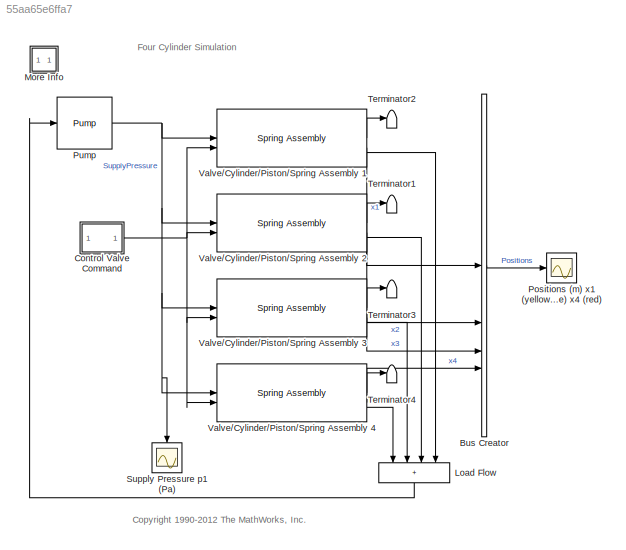
MODEL slx_55aa65e6ffa7
KIND model
CONFIG AbsTol = auto
CONFIG EnableMultiTasking = off
CONFIG FixedStep = 0.001
CONFIG MaxStep = auto
CONFIG MinStep = auto
CONFIG RelTol = 1e-6
CONFIG SampleTimeConstraint = Unconstrained
CONFIG SolverName = ode45
CONFIG StartTime = 0.0
CONFIG StopTime = 0.1
WORKSPACE source: MATLAB code (in-file)
WORKSPACE code: load sldemo_hydcyl_data;
BLOCK [BusCreator] Bus Creator
  DisplayOption = bar
  InheritFromInputs = on
  Inputs = 4
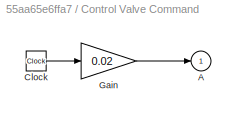
BLOCK [SubSystem] Control Valve Command
  ShowPortLabels = none
BLOCK [Outport] Control Valve Command/A
  InitialOutput = 0
  VectorParamsAs1DForOutWhenUnconnected = off
BLOCK [Clock] Control Valve Command/Clock
BLOCK [Gain] Control Valve Command/Gain
  Gain = 0.02
  OutDataTypeStr = Inherit: Same as input
  ParamDataTypeStr = Inherit: Same as input
  SaturateOnIntegerOverflow = on
BLOCK [Sum] Load Flow
  IconShape = rectangular
  InputSameDT = on
  Inputs = ++++
  NameLocation = left
  OutDataTypeStr = Inherit: Same as first input
  SaturateOnIntegerOverflow = on
BLOCK [SubSystem] More Info
  OpenFcn = showExample('simulink_general/sldemo_hydcyl4Example')
BLOCK [Scope] Positions (m) x1 (yellow) x2 (purple) x3 (blue) x4 (red)
  Floating = off
  NumInputPorts = 1
  ScopeSpecificationString = Simulink.scopes.TimeScopeBlockCfg('CurrentConfiguration', extmgr.ConfigurationSet(extmgr.Configuration('Core','General UI',true),extmgr.Configuration('Core','Source UI',true),extmgr.Configuration('Sources','WiredSimulink',true,'DataLoggingSaveFormat','Array','DataLoggingDecimation','1','DataLoggingDecimateData',true),extmgr.Configuration('Visuals','Time Domain',true,'TimeAxisLabels','All','Seriali...<+1730ch>
BLOCK [Reference] Pump  REF=hydlib/Pump  (lib defined in mdl_a1138ae370f5)
  SourceBlock = hydlib/Pump
  SourceProductName = Simulink
  SourceType = Pump
BLOCK [Scope] Supply Pressure p1 (Pa)
  Floating = off
  NameLocation = left
  NumInputPorts = 1
  ScopeSpecificationString = Simulink.scopes.TimeScopeBlockCfg('CurrentConfiguration', extmgr.ConfigurationSet(extmgr.Configuration('Core','General UI',true),extmgr.Configuration('Core','Source UI',true),extmgr.Configuration('Sources','WiredSimulink',true,'DataLoggingSaveFormat','Array','DataLoggingDecimation','1','DataLoggingDecimateData',true),extmgr.Configuration('Visuals','Time Domain',true,'TimeAxisLabels','All','Seriali...<+1742ch>
BLOCK [Terminator] Terminator1
BLOCK [Terminator] Terminator2
BLOCK [Terminator] Terminator3
BLOCK [Terminator] Terminator4
BLOCK [Reference] Valve//Cylinder//Piston//Spring Assembly 1  REF=hydlib/Valve//Cylinder//Piston//Spring Assembly  (lib defined in mdl_a1138ae370f5)
  SourceBlock = hydlib/Valve//Cylinder//Piston//Spring Assembly
  SourceProductName = Simulink
  SourceType = Valve/Cylinder/Piston/Spring Assembly
BLOCK [Reference] Valve//Cylinder//Piston//Spring Assembly 2  REF=hydlib/Valve//Cylinder//Piston//Spring Assembly  (lib defined in mdl_a1138ae370f5)
  SourceBlock = hydlib/Valve//Cylinder//Piston//Spring Assembly
  SourceProductName = Simulink
  SourceType = Valve/Cylinder/Piston/Spring Assembly
BLOCK [Reference] Valve//Cylinder//Piston//Spring Assembly 3  REF=hydlib/Valve//Cylinder//Piston//Spring Assembly  (lib defined in mdl_a1138ae370f5)
  SourceBlock = hydlib/Valve//Cylinder//Piston//Spring Assembly
  SourceProductName = Simulink
  SourceType = Valve/Cylinder/Piston/Spring Assembly
BLOCK [Reference] Valve//Cylinder//Piston//Spring Assembly 4  REF=hydlib/Valve//Cylinder//Piston//Spring Assembly  (lib defined in mdl_a1138ae370f5)
  SourceBlock = hydlib/Valve//Cylinder//Piston//Spring Assembly
  SourceProductName = Simulink
  SourceType = Valve/Cylinder/Piston/Spring Assembly
ANNOTATION (root): <copyright redacted>
ANNOTATION (root): Four Cylinder Simulation
LINE Bus Creator:1 -> Positions (m) x1 (yellow) x2 (purple) x3 (blue) x4 (red):1
LINE Control Valve Command/Clock:1 -> Control Valve Command/Gain:1
LINE Control Valve Command/Gain:1 -> Control Valve Command/A:1
NET Control Valve Command:1 -> Valve//Cylinder//Piston//Spring Assembly 1:2, Valve//Cylinder//Piston//Spring Assembly 2:2, Valve//Cylinder//Piston//Spring Assembly 3:2, Valve//Cylinder//Piston//Spring Assembly 4:2
LINE Load Flow:1 -> Pump:1
NET Pump:1 -> Supply Pressure p1 (Pa):1, Valve//Cylinder//Piston//Spring Assembly 1:1, Valve//Cylinder//Piston//Spring Assembly 2:1, Valve//Cylinder//Piston//Spring Assembly 3:1, Valve//Cylinder//Piston//Spring Assembly 4:1
LINE Valve//Cylinder//Piston//Spring Assembly 1:1 -> Terminator2:1
LINE Valve//Cylinder//Piston//Spring Assembly 1:2 -> Bus Creator:1
LINE Valve//Cylinder//Piston//Spring Assembly 1:3 -> Load Flow:4
LINE Valve//Cylinder//Piston//Spring Assembly 2:1 -> Terminator1:1
LINE Valve//Cylinder//Piston//Spring Assembly 2:2 -> Bus Creator:2
LINE Valve//Cylinder//Piston//Spring Assembly 2:3 -> Load Flow:3
LINE Valve//Cylinder//Piston//Spring Assembly 3:1 -> Terminator3:1
LINE Valve//Cylinder//Piston//Spring Assembly 3:2 -> Bus Creator:3
LINE Valve//Cylinder//Piston//Spring Assembly 3:3 -> Load Flow:2
LINE Valve//Cylinder//Piston//Spring Assembly 4:1 -> Terminator4:1
LINE Valve//Cylinder//Piston//Spring Assembly 4:2 -> Bus Creator:4
LINE Valve//Cylinder//Piston//Spring Assembly 4:3 -> Load Flow:1
note: NET lines group one-source signal fan-out (src -> all destinations, sorted); 1:1 wires keep LINE
